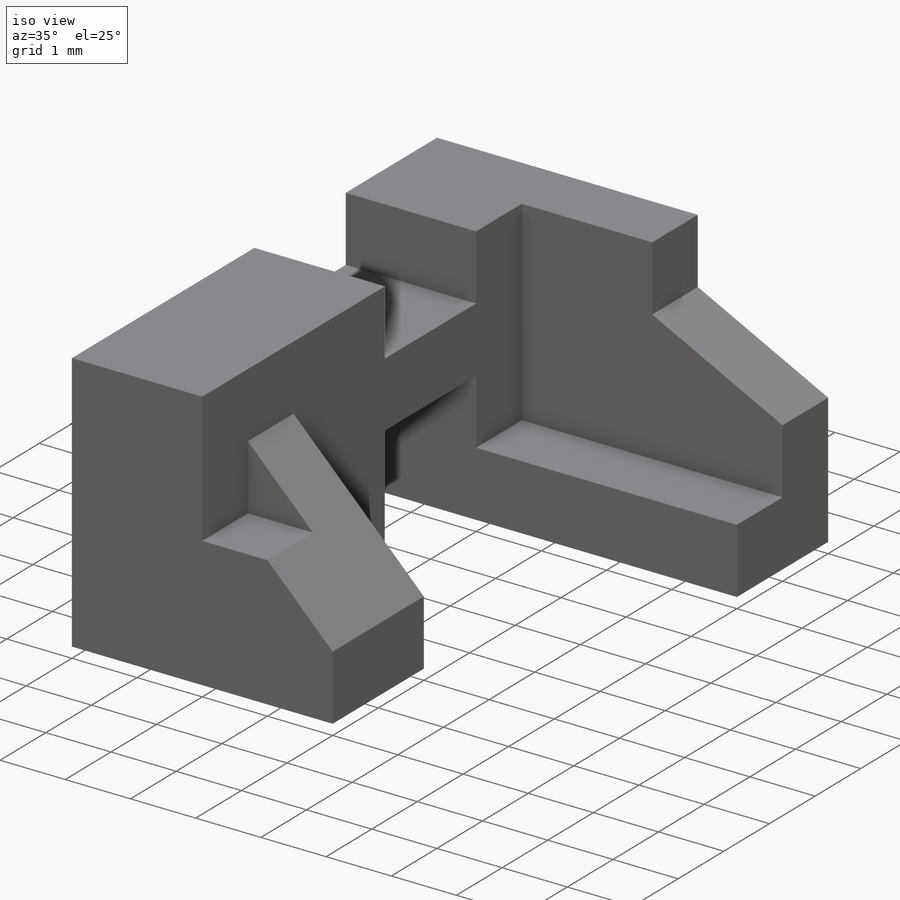
[diagram: iso view]
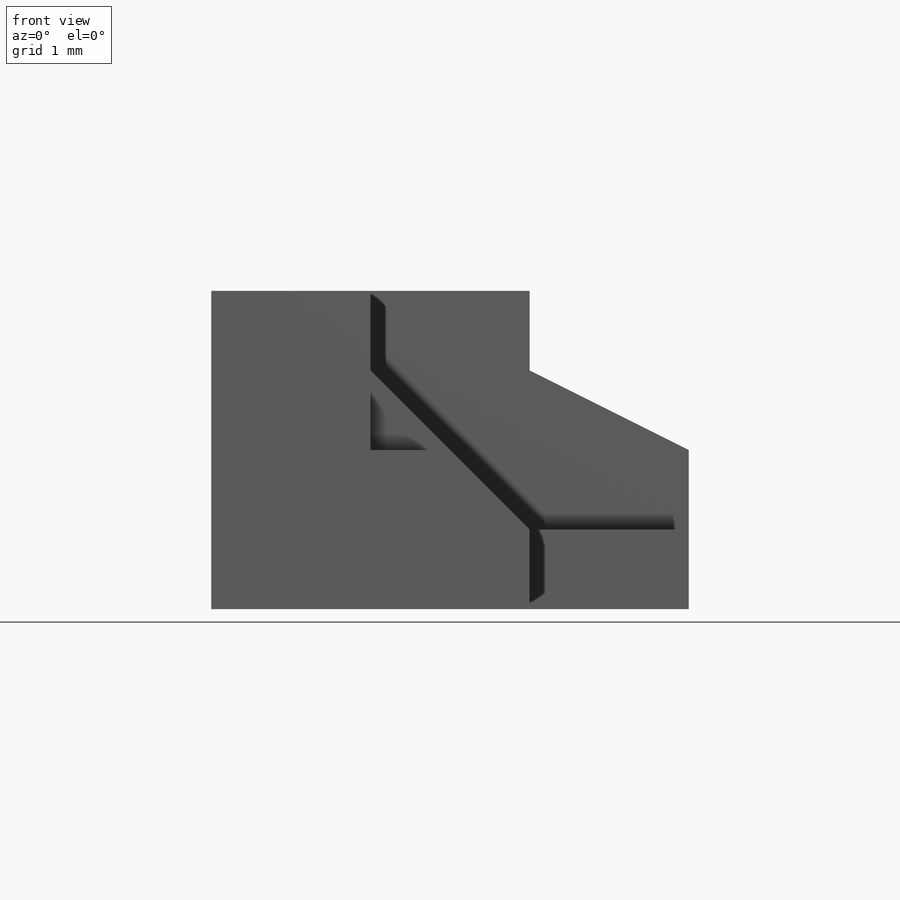
[diagram: front view]
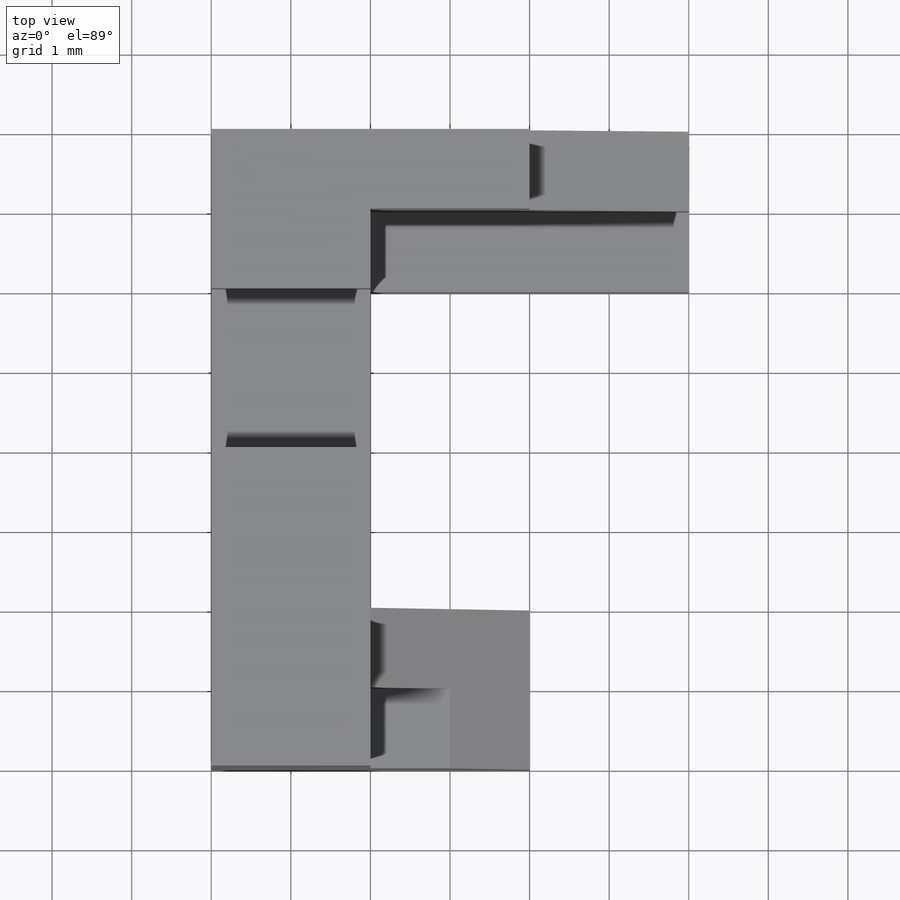
[diagram: top view]
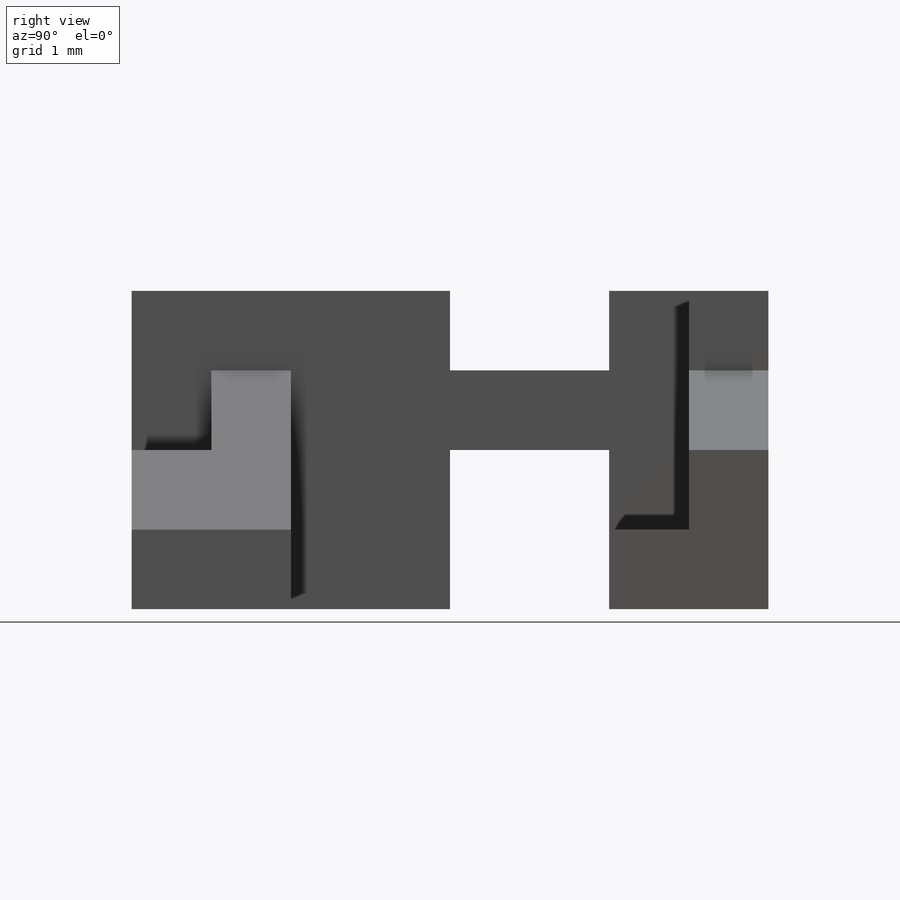
[diagram: right view]
SOLIDWORKS PART (.sldprt)
format: sldprt  version: not decoded by parser v0  size: 273,408 bytes
history: native  units: mm
features: sketch x10, cut_extrude x9, material x1, extrude x1 (+13 scaffold rows collapsed)
feature tree (34):
  scaffold x13  (default folders/planes/origin — collapsed)
  material  "Material <not specified>"
  sketch  "Sketch1"  dims[D1=6.0mm D2=4.0mm]
  extrude  "Boss-Extrude1"  Depth=8mm
  sketch  "Sketch2"  dims[D1=2.0mm D2=2.0mm D3=2.0mm]
  cut_extrude  "Cut-Extrude1"  Depth=1mm
  sketch  "Sketch4"  dims[D1=1.0mm D2=5.0mm D3=1.0mm]
  cut_extrude  "Cut-Extrude13"  Depth=4mm
  sketch  "Sketch5"  dims[D1=1.0mm]
  cut_extrude  "Cut-Extrude14"  Depth=4mm
  sketch  "Sketch6"  dims[D1=2.0mm D2=2.0mm]
  cut_extrude  "Cut-Extrude15"  [1 undecoded]
  sketch  "Sketch7"  dims[D1=1.0mm D2=2.0mm D3=2.0mm]
  cut_extrude  "Cut-Extrude16"  Depth=1mm
  sketch  "Sketch8"  dims[D1=2.0mm D2=1.0mm]
  cut_extrude  "Cut-Extrude17"  Depth=2mm
  sketch  "Sketch10"  dims[D1=4.0mm]
  cut_extrude  "Cut-Extrude18"  [1 undecoded]
  sketch  "Sketch12"  dims[D1=1.0mm]
  cut_extrude  "Cut-Extrude19"  Depth=2mm
  sketch  "Sketch13"
  cut_extrude  "Cut-Extrude20"  Depth=2mm
decode coverage: 17 of 20 modeling features carry decoded parameters
note: 2 parameter values undecoded
note: suppression state not decoded; provenance and decode notes live in map.json
